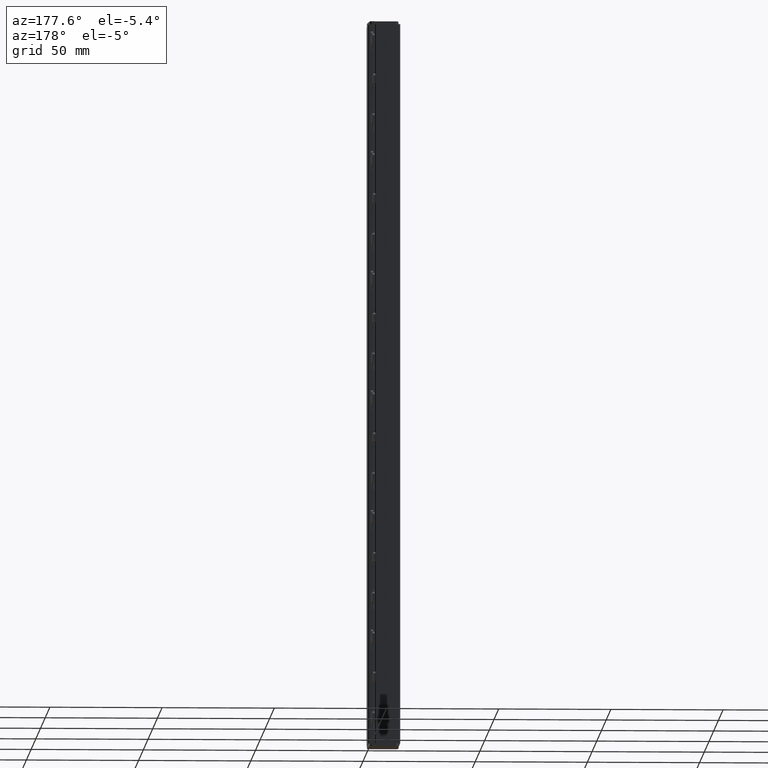
[diagram: clean part render]
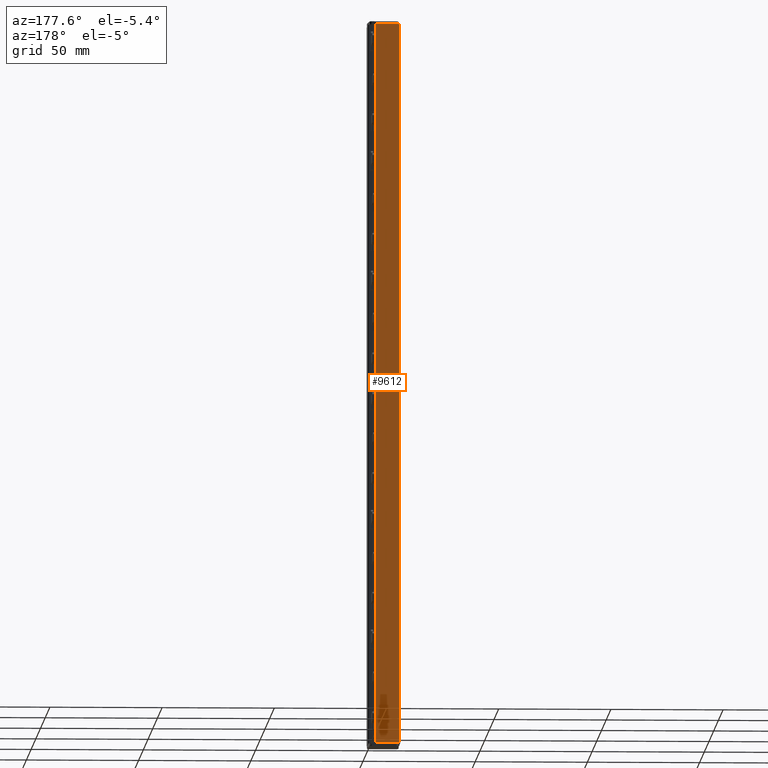
[diagram: same view with one face highlighted and labeled with its STEP entity id]
A machine part, auxiliary view. The second image highlights one B-rep face of the part: STEP entity #9612.
In plain terms, the highlighted planar face has unit normal (0, 1, 0).
Its self-contained STEP definition (entity closure, byte-faithful):
#2492 = ORIENTED_EDGE ( 'NONE', *, *, #5179, .T. ) ;
#2513 = ORIENTED_EDGE ( 'NONE', *, *, #5173, .T. ) ;
#2534 = ORIENTED_EDGE ( 'NONE', *, *, #5169, .F. ) ;
#2538 = ORIENTED_EDGE ( 'NONE', *, *, #5154, .F. ) ;
#3719 = VERTEX_POINT ( 'NONE', #19023 ) ;
#5154 = EDGE_CURVE ( 'NONE', #6196, #6160, #19775, .T. ) ;
#5169 = EDGE_CURVE ( 'NONE', #6085, #6196, #19812, .T. ) ;
#5173 = EDGE_CURVE ( 'NONE', #3719, #6160, #19832, .T. ) ;
#5179 = EDGE_CURVE ( 'NONE', #6085, #3719, #19878, .T. ) ;
#6085 = VERTEX_POINT ( 'NONE', #23596 ) ;
#6160 = VERTEX_POINT ( 'NONE', #23645 ) ;
#6196 = VERTEX_POINT ( 'NONE', #23724 ) ;
#7702 = EDGE_LOOP ( 'NONE', ( #2492, #2513, #2538, #2534 ) ) ;
#9612 = ADVANCED_FACE ( 'NONE', ( #29830 ), #29799, .T. ) ;
#11433 = VECTOR ( 'NONE', #19845, 1000.000000000000000 ) ;
#11453 = VECTOR ( 'NONE', #19762, 1000.000000000000000 ) ;
#11457 = VECTOR ( 'NONE', #19834, 1000.000000000000000 ) ;
#11514 = VECTOR ( 'NONE', #19802, 1000.000000000000000 ) ;
#19023 = CARTESIAN_POINT ( 'NONE',  ( 745.1639254488745800, 272.9107092558807000, -102.4500000000000200 ) ) ;
#19762 = DIRECTION ( 'NONE',  ( -0.0000000000000000000, -0.0000000000000000000, -1.000000000000000000 ) ) ;
#19775 = LINE ( 'NONE', #19795, #11453 ) ;
#19795 = CARTESIAN_POINT ( 'NONE',  ( 734.7966921641410600, 272.9107092558807600, 221.5499999999999800 ) ) ;
#19799 = CARTESIAN_POINT ( 'NONE',  ( 716.9472643408455500, 272.9107092558807000, 219.0000000000000000 ) ) ;
#19802 = DIRECTION ( 'NONE',  ( -1.000000000000000000, -0.0000000000000000000, 0.0000000000000000000 ) ) ;
#19812 = LINE ( 'NONE', #19799, #11514 ) ;
#19832 = LINE ( 'NONE', #19833, #11457 ) ;
#19833 = CARTESIAN_POINT ( 'NONE',  ( 526.8446046221007500, 272.9107092558807000, -102.4500000000000000 ) ) ;
#19834 = DIRECTION ( 'NONE',  ( -1.000000000000000000, -0.0000000000000000000, 0.0000000000000000000 ) ) ;
#19845 = DIRECTION ( 'NONE',  ( -0.0000000000000000000, 0.0000000000000000000, -1.000000000000000000 ) ) ;
#19853 = CARTESIAN_POINT ( 'NONE',  ( 745.1639254488745800, 272.9107092558807000, 221.5499999999999800 ) ) ;
#19878 = LINE ( 'NONE', #19853, #11433 ) ;
#23596 = CARTESIAN_POINT ( 'NONE',  ( 745.1639254488745800, 272.9107092558807000, 219.0000000000000000 ) ) ;
#23645 = CARTESIAN_POINT ( 'NONE',  ( 734.7966921641410600, 272.9107092558807000, -102.4500000000000200 ) ) ;
#23724 = CARTESIAN_POINT ( 'NONE',  ( 734.7966921641410600, 272.9107092558807000, 219.0000000000000000 ) ) ;
#26455 = AXIS2_PLACEMENT_3D ( 'NONE', #29803, #29806, #29807 ) ;
#29799 = PLANE ( 'NONE',  #26455 ) ;
#29803 = CARTESIAN_POINT ( 'NONE',  ( 741.4460531650579500, 272.9107092558807000, 221.5499999999999800 ) ) ;
#29806 = DIRECTION ( 'NONE',  ( 0.0000000000000000000, 1.000000000000000000, 0.0000000000000000000 ) ) ;
#29807 = DIRECTION ( 'NONE',  ( 0.0000000000000000000, -0.0000000000000000000, 1.000000000000000000 ) ) ;
#29830 = FACE_OUTER_BOUND ( 'NONE', #7702, .T. ) ;